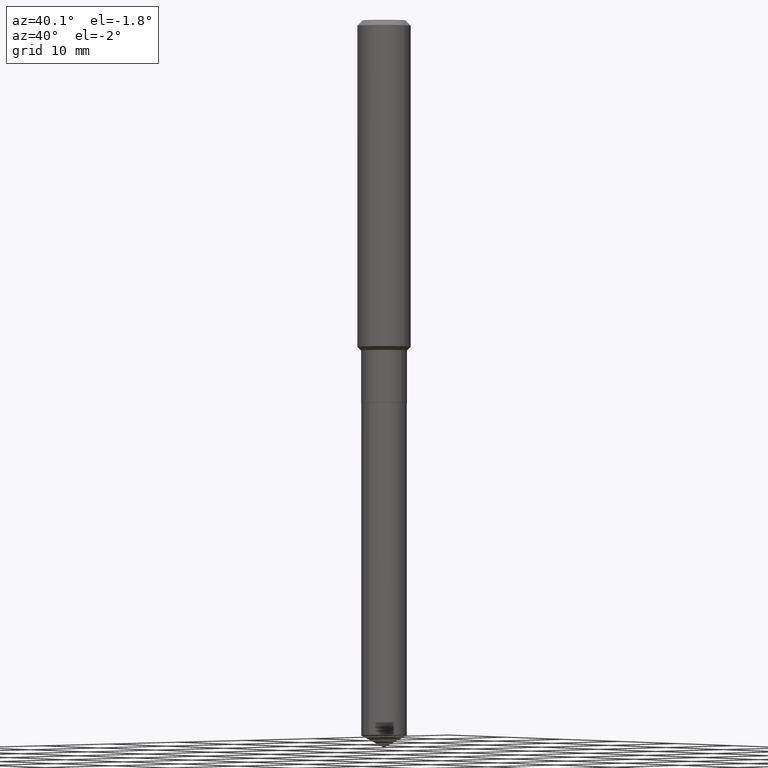
[diagram: clean part render]
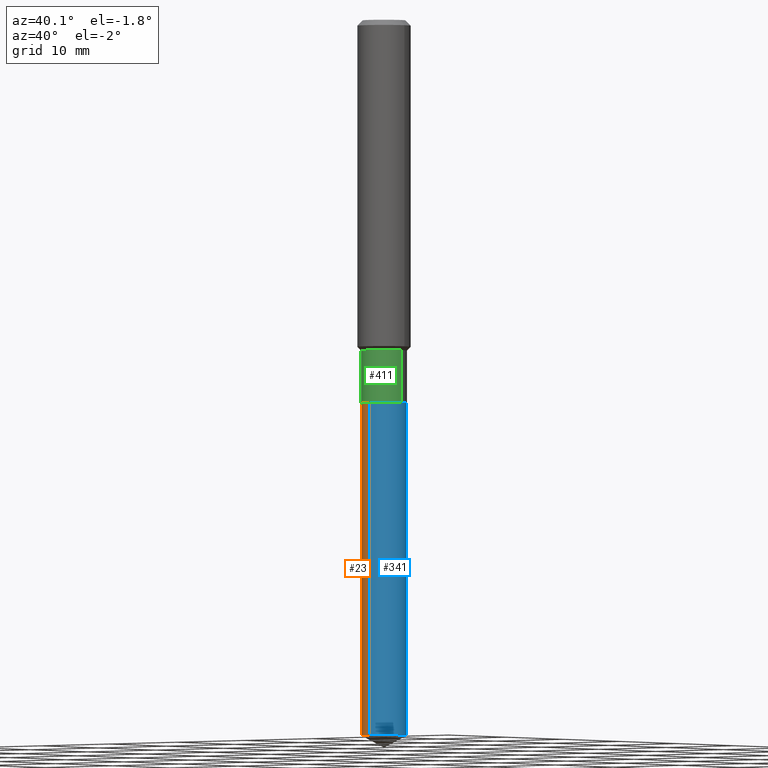
[diagram: same view with three faces highlighted in distinct colors, each labeled with its STEP entity id]
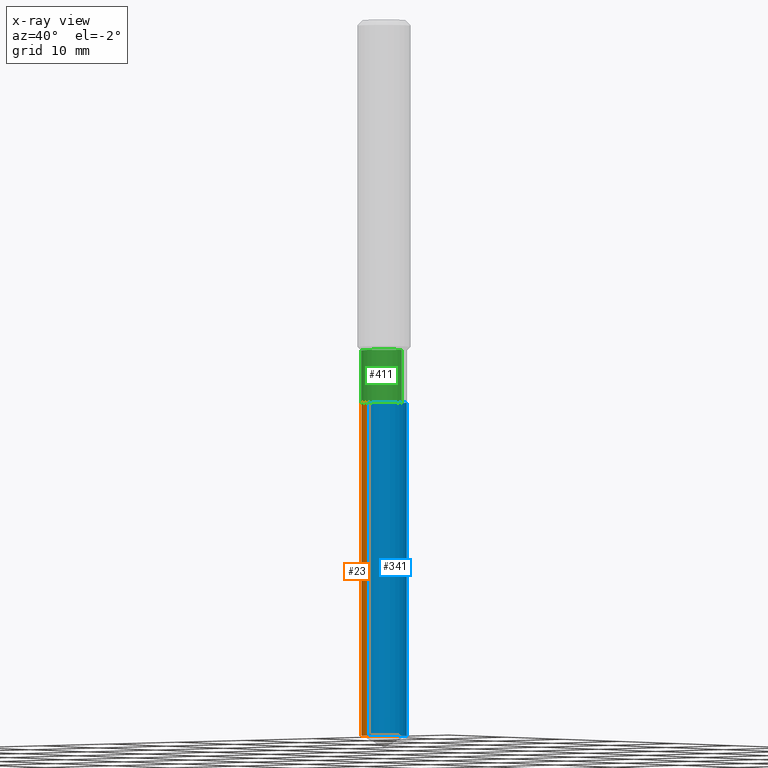
[diagram: x-ray of the same camera — body ghosted, the three highlighted faces saturated]
A machine part, auxiliary view with three faces highlighted in distinct colors.
The next image is the same camera in x-ray (body ghosted, the three faces saturated) — at least one of them is partly hidden behind the body in this view.
Their STEP definitions:

[orange] entity #23 — the highlighted cylindrical surface (edge-blend (fillet) strip) has radius 2.5794 mm, axis along (-0, 0, 1).
#7 = CARTESIAN_POINT ( 'NONE',  ( 7.215561481644231637E-16, 0.1015499999999940756, -1.699100000000000499 ) ) ;
#14 = DIRECTION ( 'NONE',  ( -2.445545835691527573E-29, 3.491371028205746504E-15, 1.000000000000000000 ) ) ;
#23 = ADVANCED_FACE ( 'NONE', ( #51 ), #123, .T. ) ;
#25 = CIRCLE ( 'NONE', #33, 0.1015500000000000014 ) ;
#33 = AXIS2_PLACEMENT_3D ( 'NONE', #100, #14, #246 ) ;
#41 = ORIENTED_EDGE ( 'NONE', *, *, #370, .F. ) ;
#51 = FACE_OUTER_BOUND ( 'NONE', #369, .T. ) ;
#59 = EDGE_CURVE ( 'NONE', #413, #146, #25, .T. ) ;
#73 = ORIENTED_EDGE ( 'NONE', *, *, #148, .F. ) ;
#78 = VERTEX_POINT ( 'NONE', #166 ) ;
#83 = DIRECTION ( 'NONE',  ( -2.445545835691527573E-29, 3.491371028205746504E-15, 1.000000000000000000 ) ) ;
#95 = CIRCLE ( 'NONE', #385, 0.1015500000000000014 ) ;
#100 = CARTESIAN_POINT ( 'NONE',  ( 7.762043602469263773E-29, -1.108181620523654682E-14, -3.174004907214777127 ) ) ;
#107 = DIRECTION ( 'NONE',  ( -2.445545835691527573E-29, 3.491371028205746504E-15, 1.000000000000000000 ) ) ;
#123 = CYLINDRICAL_SURFACE ( 'NONE', #241, 0.1015500000000000014 ) ;
#146 = VERTEX_POINT ( 'NONE', #339 ) ;
#148 = EDGE_CURVE ( 'NONE', #413, #78, #348, .T. ) ;
#166 = CARTESIAN_POINT ( 'NONE',  ( 7.215561481644595499E-16, 0.1015499999999940756, -1.699100000000000499 ) ) ;
#220 = ORIENTED_EDGE ( 'NONE', *, *, #372, .T. ) ;
#241 = AXIS2_PLACEMENT_3D ( 'NONE', #274, #83, #243 ) ;
#243 = DIRECTION ( 'NONE',  ( -6.982962677686266711E-15, -1.000000000000000000, 2.690150658458161520E-15 ) ) ;
#246 = DIRECTION ( 'NONE',  ( -6.982962677686266711E-15, -1.000000000000000000, 5.380301316916323039E-15 ) ) ;
#274 = CARTESIAN_POINT ( 'NONE',  ( 4.155096048589166181E-29, -5.932375942828389297E-15, -1.699100000000000277 ) ) ;
#281 = VECTOR ( 'NONE', #378, 39.37007874015748143 ) ;
#284 = DIRECTION ( 'NONE',  ( -6.982962677686266711E-15, -1.000000000000000000, 2.690150658458161520E-15 ) ) ;
#320 = CARTESIAN_POINT ( 'NONE',  ( 4.155096048589166181E-29, -5.932375942828389297E-15, -1.699100000000000277 ) ) ;
#339 = CARTESIAN_POINT ( 'NONE',  ( -7.091198599189627834E-16, -0.1015500000000110897, -3.174004907214776683 ) ) ;
#343 = VERTEX_POINT ( 'NONE', #437 ) ;
#348 = LINE ( 'NONE', #7, #281 ) ;
#369 = EDGE_LOOP ( 'NONE', ( #73, #480, #220, #41 ) ) ;
#370 = EDGE_CURVE ( 'NONE', #78, #343, #95, .T. ) ;
#372 = EDGE_CURVE ( 'NONE', #146, #343, #423, .T. ) ;
#376 = VECTOR ( 'NONE', #107, 39.37007874015748143 ) ;
#378 = DIRECTION ( 'NONE',  ( -2.445545835691527573E-29, 3.491371028205746504E-15, 1.000000000000000000 ) ) ;
#385 = AXIS2_PLACEMENT_3D ( 'NONE', #320, #471, #284 ) ;
#413 = VERTEX_POINT ( 'NONE', #442 ) ;
#423 = LINE ( 'NONE', #476, #376 ) ;
#437 = CARTESIAN_POINT ( 'NONE',  ( -7.091198599189988738E-16, -0.1015500000000059272, -1.699099999999999833 ) ) ;
#442 = CARTESIAN_POINT ( 'NONE',  ( 7.215561481644593527E-16, 0.1015499999999889269, -3.174004907214778015 ) ) ;
#471 = DIRECTION ( 'NONE',  ( -2.445545835691527573E-29, 3.491371028205746504E-15, 1.000000000000000000 ) ) ;
#476 = CARTESIAN_POINT ( 'NONE',  ( -7.091198599189988738E-16, -0.1015500000000059272, -1.699099999999999833 ) ) ;
#480 = ORIENTED_EDGE ( 'NONE', *, *, #59, .T. ) ;

[blue] entity #341 — the highlighted cylindrical surface (edge-blend (fillet) strip) has radius 2.5794 mm, axis along (-0, 0, 1).
#7 = CARTESIAN_POINT ( 'NONE',  ( 7.215561481644231637E-16, 0.1015499999999940756, -1.699100000000000499 ) ) ;
#39 = EDGE_CURVE ( 'NONE', #343, #78, #52, .T. ) ;
#52 = CIRCLE ( 'NONE', #337, 0.1015500000000000014 ) ;
#53 = DIRECTION ( 'NONE',  ( -6.982962677686266711E-15, -1.000000000000000000, 2.690150658458161520E-15 ) ) ;
#55 = ORIENTED_EDGE ( 'NONE', *, *, #148, .T. ) ;
#78 = VERTEX_POINT ( 'NONE', #166 ) ;
#94 = FACE_OUTER_BOUND ( 'NONE', #200, .T. ) ;
#107 = DIRECTION ( 'NONE',  ( -2.445545835691527573E-29, 3.491371028205746504E-15, 1.000000000000000000 ) ) ;
#140 = DIRECTION ( 'NONE',  ( -2.445545835691527573E-29, 3.491371028205746504E-15, 1.000000000000000000 ) ) ;
#146 = VERTEX_POINT ( 'NONE', #339 ) ;
#148 = EDGE_CURVE ( 'NONE', #413, #78, #348, .T. ) ;
#166 = CARTESIAN_POINT ( 'NONE',  ( 7.215561481644595499E-16, 0.1015499999999940756, -1.699100000000000499 ) ) ;
#173 = CARTESIAN_POINT ( 'NONE',  ( 4.155096048589166181E-29, -5.932375942828389297E-15, -1.699100000000000277 ) ) ;
#185 = CIRCLE ( 'NONE', #250, 0.1015500000000000014 ) ;
#200 = EDGE_LOOP ( 'NONE', ( #375, #55, #333, #482 ) ) ;
#239 = CYLINDRICAL_SURFACE ( 'NONE', #259, 0.1015500000000000014 ) ;
#250 = AXIS2_PLACEMENT_3D ( 'NONE', #468, #469, #466 ) ;
#259 = AXIS2_PLACEMENT_3D ( 'NONE', #173, #429, #53 ) ;
#277 = EDGE_CURVE ( 'NONE', #146, #413, #185, .T. ) ;
#281 = VECTOR ( 'NONE', #378, 39.37007874015748143 ) ;
#333 = ORIENTED_EDGE ( 'NONE', *, *, #39, .F. ) ;
#337 = AXIS2_PLACEMENT_3D ( 'NONE', #398, #140, #395 ) ;
#339 = CARTESIAN_POINT ( 'NONE',  ( -7.091198599189627834E-16, -0.1015500000000110897, -3.174004907214776683 ) ) ;
#341 = ADVANCED_FACE ( 'NONE', ( #94 ), #239, .T. ) ;
#343 = VERTEX_POINT ( 'NONE', #437 ) ;
#348 = LINE ( 'NONE', #7, #281 ) ;
#372 = EDGE_CURVE ( 'NONE', #146, #343, #423, .T. ) ;
#375 = ORIENTED_EDGE ( 'NONE', *, *, #277, .T. ) ;
#376 = VECTOR ( 'NONE', #107, 39.37007874015748143 ) ;
#378 = DIRECTION ( 'NONE',  ( -2.445545835691527573E-29, 3.491371028205746504E-15, 1.000000000000000000 ) ) ;
#395 = DIRECTION ( 'NONE',  ( -6.982962677686266711E-15, -1.000000000000000000, 2.690150658458161520E-15 ) ) ;
#398 = CARTESIAN_POINT ( 'NONE',  ( 4.155096048589166181E-29, -5.932375942828389297E-15, -1.699100000000000277 ) ) ;
#413 = VERTEX_POINT ( 'NONE', #442 ) ;
#423 = LINE ( 'NONE', #476, #376 ) ;
#429 = DIRECTION ( 'NONE',  ( -2.445545835691527573E-29, 3.491371028205746504E-15, 1.000000000000000000 ) ) ;
#437 = CARTESIAN_POINT ( 'NONE',  ( -7.091198599189988738E-16, -0.1015500000000059272, -1.699099999999999833 ) ) ;
#442 = CARTESIAN_POINT ( 'NONE',  ( 7.215561481644593527E-16, 0.1015499999999889269, -3.174004907214778015 ) ) ;
#466 = DIRECTION ( 'NONE',  ( -6.982962677686266711E-15, -1.000000000000000000, 5.380301316916323039E-15 ) ) ;
#468 = CARTESIAN_POINT ( 'NONE',  ( 7.762043602469263773E-29, -1.108181620523654682E-14, -3.174004907214777127 ) ) ;
#469 = DIRECTION ( 'NONE',  ( -2.445545835691527573E-29, 3.491371028205746504E-15, 1.000000000000000000 ) ) ;
#476 = CARTESIAN_POINT ( 'NONE',  ( -7.091198599189988738E-16, -0.1015500000000059272, -1.699099999999999833 ) ) ;
#482 = ORIENTED_EDGE ( 'NONE', *, *, #372, .F. ) ;

[green] entity #411 — the highlighted cylindrical surface (edge-blend (fillet) strip) has radius 2.5794 mm, axis along (-0, 0, 1).
#5 = AXIS2_PLACEMENT_3D ( 'NONE', #176, #254, #29 ) ;
#12 = DIRECTION ( 'NONE',  ( -2.445468806185136877E-29, 3.491481338843145188E-15, 1.000000000000000000 ) ) ;
#29 = DIRECTION ( 'NONE',  ( 1.000000000000000000, -6.982962677686266711E-15, 4.876176775795935793E-29 ) ) ;
#30 = VERTEX_POINT ( 'NONE', #294 ) ;
#31 = EDGE_CURVE ( 'NONE', #301, #267, #63, .T. ) ;
#58 = VERTEX_POINT ( 'NONE', #436 ) ;
#62 = CIRCLE ( 'NONE', #269, 0.1015499999999999736 ) ;
#63 = LINE ( 'NONE', #291, #258 ) ;
#87 = ORIENTED_EDGE ( 'NONE', *, *, #31, .T. ) ;
#92 = LINE ( 'NONE', #136, #233 ) ;
#116 = EDGE_LOOP ( 'NONE', ( #238, #314, #87, #215 ) ) ;
#136 = CARTESIAN_POINT ( 'NONE',  ( -0.1015499999999999875, 7.215561481643816499E-16, -4.995178584153856401E-30 ) ) ;
#138 = DIRECTION ( 'NONE',  ( -2.445468806185136877E-29, 3.491481338843145188E-15, 1.000000000000000000 ) ) ;
#176 = CARTESIAN_POINT ( 'NONE',  ( 0.000000000000000000, 0.000000000000000000, 0.000000000000000000 ) ) ;
#215 = ORIENTED_EDGE ( 'NONE', *, *, #488, .F. ) ;
#219 = CARTESIAN_POINT ( 'NONE',  ( 3.583834535464318409E-29, -5.116765902074630486E-15, -1.465500000000000247 ) ) ;
#227 = CIRCLE ( 'NONE', #461, 0.1015500000000000014 ) ;
#232 = EDGE_CURVE ( 'NONE', #30, #58, #92, .T. ) ;
#233 = VECTOR ( 'NONE', #12, 39.37007874015748143 ) ;
#238 = ORIENTED_EDGE ( 'NONE', *, *, #232, .F. ) ;
#254 = DIRECTION ( 'NONE',  ( -2.445468806185136597E-29, 3.491481338843145583E-15, 1.000000000000000000 ) ) ;
#258 = VECTOR ( 'NONE', #138, 39.37007874015748143 ) ;
#267 = VERTEX_POINT ( 'NONE', #355 ) ;
#269 = AXIS2_PLACEMENT_3D ( 'NONE', #219, #300, #449 ) ;
#291 = CARTESIAN_POINT ( 'NONE',  ( 0.1015499999999999875, -7.091198599190402890E-16, 4.951757515820772372E-30 ) ) ;
#294 = CARTESIAN_POINT ( 'NONE',  ( -0.1015500000000000014, -4.802141903952417194E-15, -1.698600000000000332 ) ) ;
#297 = DIRECTION ( 'NONE',  ( -2.445468806185136597E-29, 3.491481338843145583E-15, 1.000000000000000000 ) ) ;
#300 = DIRECTION ( 'NONE',  ( -2.445468806185136597E-29, 3.491481338843145583E-15, 1.000000000000000000 ) ) ;
#301 = VERTEX_POINT ( 'NONE', #399 ) ;
#314 = ORIENTED_EDGE ( 'NONE', *, *, #402, .T. ) ;
#334 = CARTESIAN_POINT ( 'NONE',  ( 4.153873314186073379E-29, -5.930630202158967793E-15, -1.698600000000000332 ) ) ;
#355 = CARTESIAN_POINT ( 'NONE',  ( 0.1015499999999999736, -5.825885761993670479E-15, -1.465500000000000247 ) ) ;
#373 = DIRECTION ( 'NONE',  ( 1.000000000000000000, -6.982962677686264344E-15, 0.000000000000000000 ) ) ;
#399 = CARTESIAN_POINT ( 'NONE',  ( 0.1015500000000000014, -6.639750062078007786E-15, -1.698600000000000332 ) ) ;
#402 = EDGE_CURVE ( 'NONE', #30, #301, #227, .T. ) ;
#403 = FACE_OUTER_BOUND ( 'NONE', #116, .T. ) ;
#411 = ADVANCED_FACE ( 'NONE', ( #403 ), #479, .T. ) ;
#436 = CARTESIAN_POINT ( 'NONE',  ( -0.1015499999999999736, -4.802141903952417194E-15, -1.465500000000000247 ) ) ;
#449 = DIRECTION ( 'NONE',  ( 1.000000000000000000, -6.982962677686266711E-15, 0.000000000000000000 ) ) ;
#461 = AXIS2_PLACEMENT_3D ( 'NONE', #334, #297, #373 ) ;
#479 = CYLINDRICAL_SURFACE ( 'NONE', #5, 0.1015499999999999875 ) ;
#488 = EDGE_CURVE ( 'NONE', #58, #267, #62, .T. ) ;